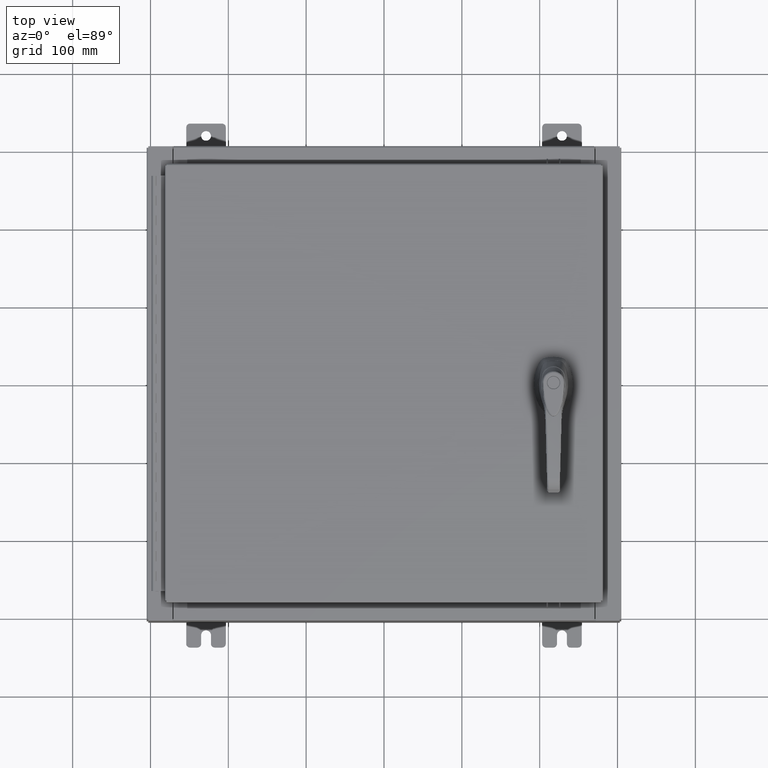
[diagram: clean part render]
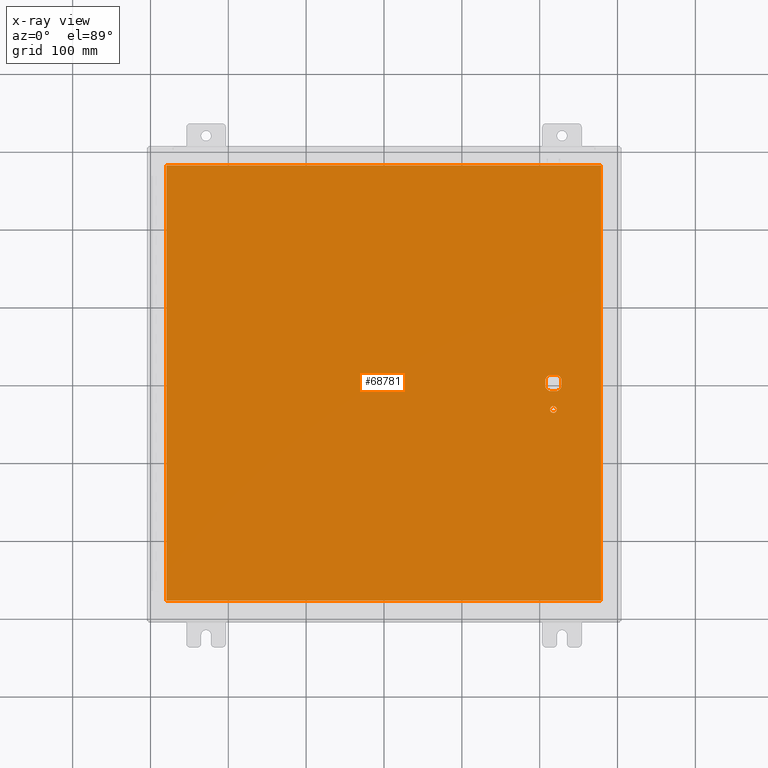
[diagram: x-ray — body ghosted, one internal face saturated and labeled with its STEP entity id]
A machine part, top view, then the same camera in x-ray: the body is ghosted and one INTERNAL B-rep face — a face not visible from any outside direction — is saturated and labeled: STEP entity #68781.
In plain terms, the highlighted planar face has unit normal (0, 0, -1).
Its self-contained STEP definition (entity closure, byte-faithful):
#1368 = CARTESIAN_POINT ( 'NONE',  ( 10.99029999999999600, -11.00630000000000100, -0.07470000000000000300 ) ) ;
#3076 = CARTESIAN_POINT ( 'NONE',  ( 8.577999999999995900, -1.338000000000000100, -0.07470000000000003000 ) ) ;
#3650 = LINE ( 'NONE', #4025, #70825 ) ;
#4025 = CARTESIAN_POINT ( 'NONE',  ( 8.980999999999921700, 2.450686610769031800E-014, -0.07470000000000003000 ) ) ;
#5356 = ORIENTED_EDGE ( 'NONE', *, *, #54219, .T. ) ;
#6418 = ORIENTED_EDGE ( 'NONE', *, *, #70435, .T. ) ;
#8141 = EDGE_CURVE ( 'NONE', #34916, #62244, #15203, .T. ) ;
#8377 = CARTESIAN_POINT ( 'NONE',  ( 8.175000000000070000, 0.0000000000000000000, -0.07470000000000003000 ) ) ;
#9250 = DIRECTION ( 'NONE',  ( 0.0000000000000000000, -1.000000000000000000, 0.0000000000000000000 ) ) ;
#10502 = FACE_OUTER_BOUND ( 'NONE', #46374, .T. ) ;
#11893 = DIRECTION ( 'NONE',  ( -1.000000000000000000, 0.0000000000000000000, 0.0000000000000000000 ) ) ;
#12451 = CARTESIAN_POINT ( 'NONE',  ( 8.377772629243686700, 0.4029999999999252000, -0.07470000000000003000 ) ) ;
#12760 = ORIENTED_EDGE ( 'NONE', *, *, #42225, .F. ) ;
#12795 = CARTESIAN_POINT ( 'NONE',  ( 0.0000000000000000000, 0.0000000000000000000, -0.07470000000000000300 ) ) ;
#13260 = DIRECTION ( 'NONE',  ( -0.0000000000000000000, -0.0000000000000000000, 1.000000000000000000 ) ) ;
#14605 = CARTESIAN_POINT ( 'NONE',  ( -10.99030000000000000, -11.00630000000000100, -0.07470000000000000300 ) ) ;
#14944 = CARTESIAN_POINT ( 'NONE',  ( 10.99029999999999600, -11.00630000000000100, -0.07470000000000019700 ) ) ;
#15203 = CIRCLE ( 'NONE', #70099, 0.4499999999999156900 ) ;
#16764 = LINE ( 'NONE', #26838, #34603 ) ;
#17031 = VERTEX_POINT ( 'NONE', #37929 ) ;
#17198 = DIRECTION ( 'NONE',  ( 0.0000000000000000000, -1.000000000000000000, 0.0000000000000000000 ) ) ;
#17376 = VERTEX_POINT ( 'NONE', #37449 ) ;
#18713 = ORIENTED_EDGE ( 'NONE', *, *, #8141, .T. ) ;
#18802 = LINE ( 'NONE', #14944, #86037 ) ;
#19052 = DIRECTION ( 'NONE',  ( -0.0000000000000000000, -0.0000000000000000000, 1.000000000000000000 ) ) ;
#19739 = CARTESIAN_POINT ( 'NONE',  ( 8.406499999999994100, -1.338000000000000100, -0.07470000000000003000 ) ) ;
#21593 = PLANE ( 'NONE',  #97589 ) ;
#22132 = ORIENTED_EDGE ( 'NONE', *, *, #30163, .F. ) ;
#22547 = VERTEX_POINT ( 'NONE', #80564 ) ;
#23244 = CIRCLE ( 'NONE', #35494, 0.1715000000000011500 ) ;
#23325 = VERTEX_POINT ( 'NONE', #53245 ) ;
#23894 = CARTESIAN_POINT ( 'NONE',  ( 8.577999999999995900, 0.0000000000000000000, -0.07470000000000003000 ) ) ;
#26486 = CIRCLE ( 'NONE', #90420, 0.4499999999999156900 ) ;
#26838 = CARTESIAN_POINT ( 'NONE',  ( -10.99030000000000500, 11.00629999999999600, -0.07470000000000133500 ) ) ;
#27281 = VERTEX_POINT ( 'NONE', #1368 ) ;
#29636 = LINE ( 'NONE', #110143, #55728 ) ;
#30163 = EDGE_CURVE ( 'NONE', #17376, #62244, #3650, .T. ) ;
#31037 = FACE_BOUND ( 'NONE', #91466, .T. ) ;
#31184 = DIRECTION ( 'NONE',  ( -1.000000000000000000, 0.0000000000000000000, 0.0000000000000000000 ) ) ;
#31639 = DIRECTION ( 'NONE',  ( 1.000000000000000000, 0.0000000000000000000, 0.0000000000000000000 ) ) ;
#31782 = VERTEX_POINT ( 'NONE', #90745 ) ;
#32777 = DIRECTION ( 'NONE',  ( -1.000000000000000000, 0.0000000000000000000, 0.0000000000000000000 ) ) ;
#34070 = EDGE_CURVE ( 'NONE', #17031, #23325, #26486, .T. ) ;
#34603 = VECTOR ( 'NONE', #9250, 39.37007874015748100 ) ;
#34679 = EDGE_CURVE ( 'NONE', #87687, #44047, #16764, .T. ) ;
#34916 = VERTEX_POINT ( 'NONE', #90112 ) ;
#35494 = AXIS2_PLACEMENT_3D ( 'NONE', #48349, #109669, #57174 ) ;
#35655 = VERTEX_POINT ( 'NONE', #12451 ) ;
#36745 = VECTOR ( 'NONE', #31639, 39.37007874015748100 ) ;
#37449 = CARTESIAN_POINT ( 'NONE',  ( 8.980999999999921700, 0.2002273707563080300, -0.07470000000000003000 ) ) ;
#37864 = EDGE_CURVE ( 'NONE', #105049, #31782, #23244, .T. ) ;
#37929 = CARTESIAN_POINT ( 'NONE',  ( 8.175000000000070000, -0.2002273707563079800, -0.07470000000000003000 ) ) ;
#39265 = DIRECTION ( 'NONE',  ( -1.000000000000000000, 0.0000000000000000000, -0.0000000000000000000 ) ) ;
#40554 = VECTOR ( 'NONE', #17198, 39.37007874015748100 ) ;
#42225 = EDGE_CURVE ( 'NONE', #27281, #94841, #18802, .T. ) ;
#43131 = LINE ( 'NONE', #80120, #63664 ) ;
#44028 = DIRECTION ( 'NONE',  ( -0.0000000000000000000, -0.0000000000000000000, 1.000000000000000000 ) ) ;
#44047 = VERTEX_POINT ( 'NONE', #14605 ) ;
#46374 = EDGE_LOOP ( 'NONE', ( #12760, #58817, #48558, #80265 ) ) ;
#48349 = CARTESIAN_POINT ( 'NONE',  ( 8.577999999999995900, -1.338000000000000100, -0.07470000000000003000 ) ) ;
#48558 = ORIENTED_EDGE ( 'NONE', *, *, #34679, .F. ) ;
#53245 = CARTESIAN_POINT ( 'NONE',  ( 8.377772629243686700, -0.4029999999999250300, -0.07470000000000003000 ) ) ;
#54051 = DIRECTION ( 'NONE',  ( 1.000000000000000000, -0.0000000000000000000, -0.0000000000000000000 ) ) ;
#54219 = EDGE_CURVE ( 'NONE', #23325, #34916, #60042, .T. ) ;
#54445 = CIRCLE ( 'NONE', #93518, 0.4499999999999156900 ) ;
#55728 = VECTOR ( 'NONE', #31184, 39.37007874015748100 ) ;
#56522 = DIRECTION ( 'NONE',  ( 2.728745808672812900E-015, -1.000000000000000000, 0.0000000000000000000 ) ) ;
#57174 = DIRECTION ( 'NONE',  ( -1.000000000000000000, 0.0000000000000000000, 0.0000000000000000000 ) ) ;
#58817 = ORIENTED_EDGE ( 'NONE', *, *, #95285, .F. ) ;
#59360 = CARTESIAN_POINT ( 'NONE',  ( 8.980999999999921700, -0.2002273707563075900, -0.07470000000000003000 ) ) ;
#60042 = LINE ( 'NONE', #99516, #36745 ) ;
#61779 = AXIS2_PLACEMENT_3D ( 'NONE', #71533, #19052, #80392 ) ;
#62244 = VERTEX_POINT ( 'NONE', #59360 ) ;
#63083 = EDGE_LOOP ( 'NONE', ( #75404, #101491 ) ) ;
#63664 = VECTOR ( 'NONE', #54051, 39.37007874015748100 ) ;
#63863 = LINE ( 'NONE', #8377, #40554 ) ;
#64414 = DIRECTION ( 'NONE',  ( -0.0000000000000000000, -0.0000000000000000000, 1.000000000000000000 ) ) ;
#65242 = ORIENTED_EDGE ( 'NONE', *, *, #34070, .T. ) ;
#65788 = CARTESIAN_POINT ( 'NONE',  ( 8.577999999999995900, 0.0000000000000000000, -0.07470000000000003000 ) ) ;
#67464 = DIRECTION ( 'NONE',  ( 0.0000000000000000000, 1.000000000000000000, 0.0000000000000000000 ) ) ;
#68781 = ADVANCED_FACE ( 'NONE', ( #77704, #10502, #31037 ), #21593, .T. ) ;
#69893 = ORIENTED_EDGE ( 'NONE', *, *, #92141, .T. ) ;
#70099 = AXIS2_PLACEMENT_3D ( 'NONE', #65788, #13260, #74583 ) ;
#70435 = EDGE_CURVE ( 'NONE', #22547, #35655, #29636, .T. ) ;
#70825 = VECTOR ( 'NONE', #56522, 39.37007874015748100 ) ;
#71132 = EDGE_CURVE ( 'NONE', #98582, #17031, #63863, .T. ) ;
#71533 = CARTESIAN_POINT ( 'NONE',  ( 8.577999999999995900, 0.0000000000000000000, -0.07470000000000003000 ) ) ;
#72444 = EDGE_CURVE ( 'NONE', #94841, #87687, #72812, .T. ) ;
#72812 = LINE ( 'NONE', #110883, #96159 ) ;
#74583 = DIRECTION ( 'NONE',  ( -1.000000000000000000, 1.776356839400251300E-015, 0.0000000000000000000 ) ) ;
#75404 = ORIENTED_EDGE ( 'NONE', *, *, #75523, .T. ) ;
#75523 = EDGE_CURVE ( 'NONE', #31782, #105049, #110897, .T. ) ;
#77704 = FACE_BOUND ( 'NONE', #63083, .T. ) ;
#80120 = CARTESIAN_POINT ( 'NONE',  ( -10.99030000000000000, -11.00630000000000100, -0.07470000000000019700 ) ) ;
#80265 = ORIENTED_EDGE ( 'NONE', *, *, #72444, .F. ) ;
#80392 = DIRECTION ( 'NONE',  ( -1.000000000000000000, 0.0000000000000000000, 0.0000000000000000000 ) ) ;
#80564 = CARTESIAN_POINT ( 'NONE',  ( 8.778227370756305000, 0.4029999999999250300, -0.07470000000000003000 ) ) ;
#85266 = DIRECTION ( 'NONE',  ( -0.0000000000000000000, -0.0000000000000000000, 1.000000000000000000 ) ) ;
#86037 = VECTOR ( 'NONE', #67464, 39.37007874015748100 ) ;
#87687 = VERTEX_POINT ( 'NONE', #108381 ) ;
#87852 = CARTESIAN_POINT ( 'NONE',  ( 10.99029999999999600, 11.00629999999999600, -0.07470000000000000300 ) ) ;
#88143 = CIRCLE ( 'NONE', #61779, 0.4499999999999156900 ) ;
#90112 = CARTESIAN_POINT ( 'NONE',  ( 8.778227370756305000, -0.4029999999999252000, -0.07470000000000003000 ) ) ;
#90420 = AXIS2_PLACEMENT_3D ( 'NONE', #96528, #44028, #105335 ) ;
#90745 = CARTESIAN_POINT ( 'NONE',  ( 8.749499999999997600, -1.338000000000000100, -0.07470000000000003000 ) ) ;
#91466 = EDGE_LOOP ( 'NONE', ( #18713, #22132, #104896, #6418, #69893, #103965, #65242, #5356 ) ) ;
#91794 = DIRECTION ( 'NONE',  ( 0.0000000000000000000, 0.0000000000000000000, -1.000000000000000000 ) ) ;
#92141 = EDGE_CURVE ( 'NONE', #35655, #98582, #54445, .T. ) ;
#93518 = AXIS2_PLACEMENT_3D ( 'NONE', #23894, #85266, #32777 ) ;
#94017 = DIRECTION ( 'NONE',  ( -1.000000000000000000, -0.0000000000000000000, -0.0000000000000000000 ) ) ;
#94203 = AXIS2_PLACEMENT_3D ( 'NONE', #3076, #64414, #11893 ) ;
#94841 = VERTEX_POINT ( 'NONE', #87852 ) ;
#95285 = EDGE_CURVE ( 'NONE', #44047, #27281, #43131, .T. ) ;
#95611 = CARTESIAN_POINT ( 'NONE',  ( 8.175000000000070000, 0.2002273707563080300, -0.07470000000000003000 ) ) ;
#96159 = VECTOR ( 'NONE', #94017, 39.37007874015748100 ) ;
#96528 = CARTESIAN_POINT ( 'NONE',  ( 8.577999999999995900, 0.0000000000000000000, -0.07470000000000003000 ) ) ;
#97589 = AXIS2_PLACEMENT_3D ( 'NONE', #12795, #91794, #39265 ) ;
#98582 = VERTEX_POINT ( 'NONE', #95611 ) ;
#99516 = CARTESIAN_POINT ( 'NONE',  ( 0.0000000000000000000, -0.4029999999999252000, -0.07470000000000003000 ) ) ;
#101491 = ORIENTED_EDGE ( 'NONE', *, *, #37864, .T. ) ;
#103965 = ORIENTED_EDGE ( 'NONE', *, *, #71132, .T. ) ;
#104896 = ORIENTED_EDGE ( 'NONE', *, *, #111254, .T. ) ;
#105049 = VERTEX_POINT ( 'NONE', #19739 ) ;
#105335 = DIRECTION ( 'NONE',  ( -1.000000000000000000, 8.881784197001256300E-016, 0.0000000000000000000 ) ) ;
#108381 = CARTESIAN_POINT ( 'NONE',  ( -10.99030000000000100, 11.00629999999999600, -0.07470000000000000300 ) ) ;
#109669 = DIRECTION ( 'NONE',  ( -0.0000000000000000000, -0.0000000000000000000, 1.000000000000000000 ) ) ;
#110143 = CARTESIAN_POINT ( 'NONE',  ( 0.0000000000000000000, 0.4029999999999252000, -0.07470000000000003000 ) ) ;
#110883 = CARTESIAN_POINT ( 'NONE',  ( 10.99029999999999800, 11.00629999999999600, -0.07470000000000019700 ) ) ;
#110897 = CIRCLE ( 'NONE', #94203, 0.1715000000000011500 ) ;
#111254 = EDGE_CURVE ( 'NONE', #17376, #22547, #88143, .T. ) ;